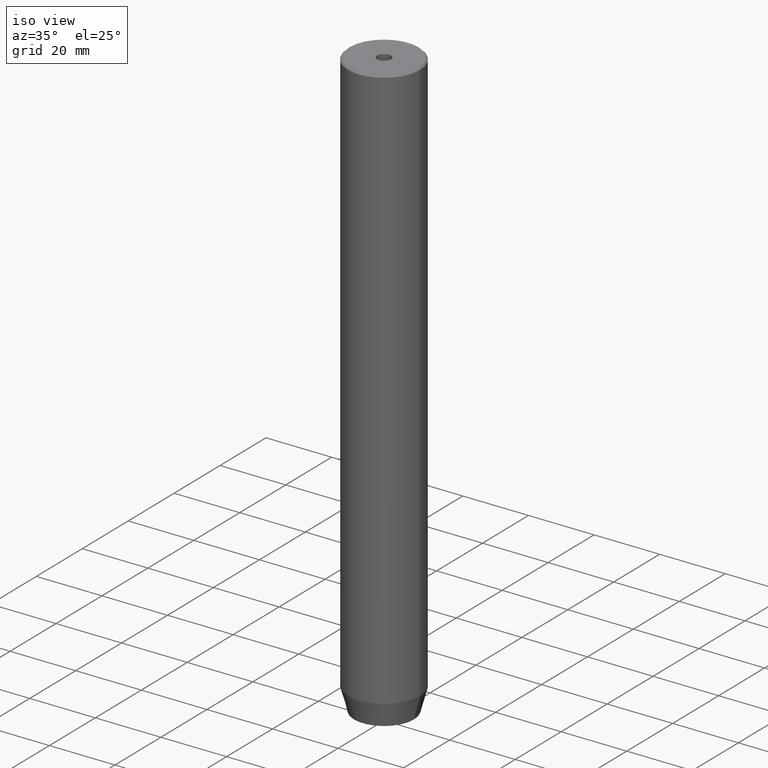
[diagram: clean part render]
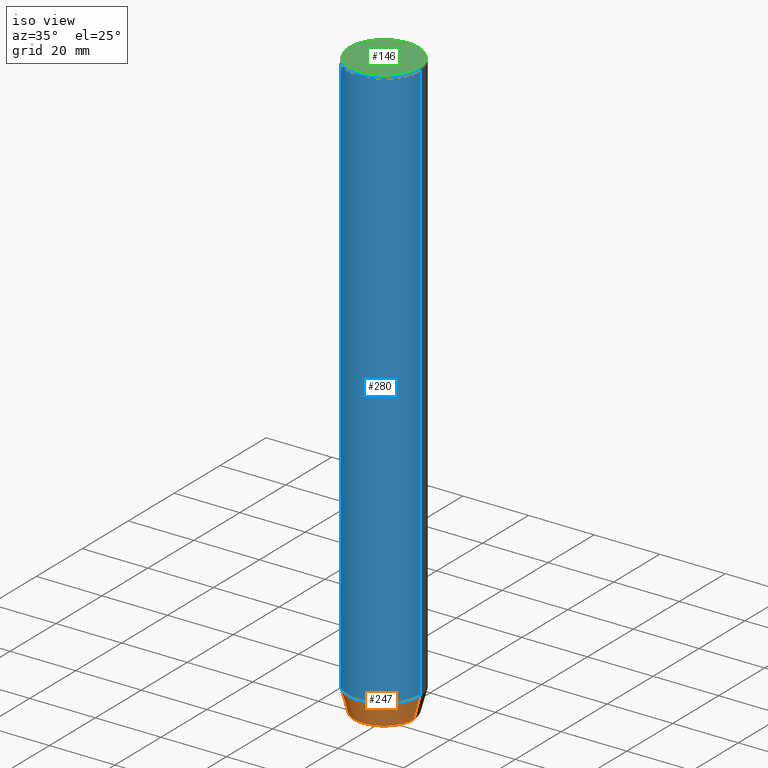
[diagram: same view with three faces highlighted in distinct colors, each labeled with its STEP entity id]
A machine part, iso view with three faces highlighted in distinct colors.
Their STEP definitions:

[orange] entity #247 — the highlighted conical surface has half-angle 15 deg.
#8 = EDGE_CURVE ( 'NONE', #311, #283, #334, .T. ) ;
#15 = EDGE_CURVE ( 'NONE', #337, #311, #440, .T. ) ;
#34 = ORIENTED_EDGE ( 'NONE', *, *, #416, .T. ) ;
#57 = AXIS2_PLACEMENT_3D ( 'NONE', #515, #100, #565 ) ;
#70 = CARTESIAN_POINT ( 'NONE',  ( -9.124355652982133691, 1.232261386766375507E-15, -180.0000000000000000 ) ) ;
#78 = DIRECTION ( 'NONE',  ( 1.000000000000000000, 0.000000000000000000, 0.000000000000000000 ) ) ;
#83 = VECTOR ( 'NONE', #348, 1000.000000000000000 ) ;
#91 = CARTESIAN_POINT ( 'NONE',  ( 9.124355652982133691, 0.000000000000000000, -180.0000000000000000 ) ) ;
#100 = DIRECTION ( 'NONE',  ( -0.000000000000000000, -0.000000000000000000, 1.000000000000000000 ) ) ;
#120 = CARTESIAN_POINT ( 'NONE',  ( -11.00000000000000000, 1.347111479062088405E-15, -173.0000000000000000 ) ) ;
#160 = DIRECTION ( 'NONE',  ( 1.000000000000000000, 0.000000000000000000, 0.000000000000000000 ) ) ;
#162 = AXIS2_PLACEMENT_3D ( 'NONE', #561, #249, #160 ) ;
#174 = CONICAL_SURFACE ( 'NONE', #57, 11.00000000000000000, 0.2617993877991500740 ) ;
#178 = ORIENTED_EDGE ( 'NONE', *, *, #8, .F. ) ;
#179 = CARTESIAN_POINT ( 'NONE',  ( 0.000000000000000000, 0.000000000000000000, -173.0000000000000000 ) ) ;
#201 = ORIENTED_EDGE ( 'NONE', *, *, #15, .F. ) ;
#206 = EDGE_LOOP ( 'NONE', ( #201, #220, #34, #178 ) ) ;
#220 = ORIENTED_EDGE ( 'NONE', *, *, #320, .T. ) ;
#222 = LINE ( 'NONE', #354, #435 ) ;
#240 = AXIS2_PLACEMENT_3D ( 'NONE', #179, #487, #78 ) ;
#247 = ADVANCED_FACE ( 'NONE', ( #478 ), #174, .T. ) ;
#249 = DIRECTION ( 'NONE',  ( -0.000000000000000000, -0.000000000000000000, 1.000000000000000000 ) ) ;
#258 = DIRECTION ( 'NONE',  ( 0.2588190451025213501, 0.000000000000000000, 0.9659258262890680902 ) ) ;
#283 = VERTEX_POINT ( 'NONE', #331 ) ;
#311 = VERTEX_POINT ( 'NONE', #562 ) ;
#320 = EDGE_CURVE ( 'NONE', #337, #575, #467, .T. ) ;
#331 = CARTESIAN_POINT ( 'NONE',  ( 11.00000000000000000, 0.000000000000000000, -173.0000000000000000 ) ) ;
#334 = CIRCLE ( 'NONE', #240, 11.00000000000000000 ) ;
#337 = VERTEX_POINT ( 'NONE', #70 ) ;
#348 = DIRECTION ( 'NONE',  ( -0.2588190451025213501, 3.169619151431772337E-17, 0.9659258262890680902 ) ) ;
#354 = CARTESIAN_POINT ( 'NONE',  ( 11.00000000000000000, 0.000000000000000000, -173.0000000000000000 ) ) ;
#416 = EDGE_CURVE ( 'NONE', #575, #283, #222, .T. ) ;
#435 = VECTOR ( 'NONE', #258, 1000.000000000000000 ) ;
#440 = LINE ( 'NONE', #120, #83 ) ;
#467 = CIRCLE ( 'NONE', #162, 9.124355652982133691 ) ;
#478 = FACE_OUTER_BOUND ( 'NONE', #206, .T. ) ;
#487 = DIRECTION ( 'NONE',  ( -0.000000000000000000, -0.000000000000000000, 1.000000000000000000 ) ) ;
#515 = CARTESIAN_POINT ( 'NONE',  ( 0.000000000000000000, 0.000000000000000000, -173.0000000000000000 ) ) ;
#561 = CARTESIAN_POINT ( 'NONE',  ( 0.000000000000000000, 0.000000000000000000, -180.0000000000000000 ) ) ;
#562 = CARTESIAN_POINT ( 'NONE',  ( -11.00000000000000000, 1.347111479062088405E-15, -173.0000000000000000 ) ) ;
#565 = DIRECTION ( 'NONE',  ( 1.000000000000000000, 0.000000000000000000, 0.000000000000000000 ) ) ;
#575 = VERTEX_POINT ( 'NONE', #91 ) ;

[blue] entity #280 — the highlighted cylindrical surface (partial cylindrical patch) has radius 11 mm, axis along (-0, -0, 1).
#5 = VECTOR ( 'NONE', #119, 1000.000000000000000 ) ;
#8 = EDGE_CURVE ( 'NONE', #311, #283, #334, .T. ) ;
#25 = FACE_OUTER_BOUND ( 'NONE', #542, .T. ) ;
#30 = ORIENTED_EDGE ( 'NONE', *, *, #495, .F. ) ;
#31 = CARTESIAN_POINT ( 'NONE',  ( -11.00000000000000000, 1.347111479062088405E-15, -0.5000000000000004441 ) ) ;
#71 = ORIENTED_EDGE ( 'NONE', *, *, #262, .T. ) ;
#78 = DIRECTION ( 'NONE',  ( 1.000000000000000000, 0.000000000000000000, 0.000000000000000000 ) ) ;
#103 = CARTESIAN_POINT ( 'NONE',  ( 0.000000000000000000, 0.000000000000000000, 0.000000000000000000 ) ) ;
#106 = DIRECTION ( 'NONE',  ( -0.000000000000000000, -0.000000000000000000, 1.000000000000000000 ) ) ;
#119 = DIRECTION ( 'NONE',  ( -0.000000000000000000, -0.000000000000000000, 1.000000000000000000 ) ) ;
#126 = DIRECTION ( 'NONE',  ( -0.000000000000000000, -0.000000000000000000, 1.000000000000000000 ) ) ;
#163 = AXIS2_PLACEMENT_3D ( 'NONE', #103, #106, #202 ) ;
#179 = CARTESIAN_POINT ( 'NONE',  ( 0.000000000000000000, 0.000000000000000000, -173.0000000000000000 ) ) ;
#192 = CYLINDRICAL_SURFACE ( 'NONE', #163, 11.00000000000000000 ) ;
#202 = DIRECTION ( 'NONE',  ( 1.000000000000000000, 0.000000000000000000, 0.000000000000000000 ) ) ;
#211 = CARTESIAN_POINT ( 'NONE',  ( 11.00000000000000000, 0.000000000000000000, 0.000000000000000000 ) ) ;
#240 = AXIS2_PLACEMENT_3D ( 'NONE', #179, #487, #78 ) ;
#256 = VERTEX_POINT ( 'NONE', #379 ) ;
#262 = EDGE_CURVE ( 'NONE', #256, #472, #325, .T. ) ;
#280 = ADVANCED_FACE ( 'NONE', ( #25 ), #192, .T. ) ;
#283 = VERTEX_POINT ( 'NONE', #331 ) ;
#311 = VERTEX_POINT ( 'NONE', #562 ) ;
#317 = VECTOR ( 'NONE', #126, 1000.000000000000000 ) ;
#325 = CIRCLE ( 'NONE', #517, 11.00000000000000000 ) ;
#331 = CARTESIAN_POINT ( 'NONE',  ( 11.00000000000000000, 0.000000000000000000, -173.0000000000000000 ) ) ;
#334 = CIRCLE ( 'NONE', #240, 11.00000000000000000 ) ;
#344 = ORIENTED_EDGE ( 'NONE', *, *, #8, .T. ) ;
#345 = CARTESIAN_POINT ( 'NONE',  ( -11.00000000000000000, 1.347111479062088405E-15, 0.000000000000000000 ) ) ;
#374 = CARTESIAN_POINT ( 'NONE',  ( 0.000000000000000000, 0.000000000000000000, -0.5000000000000004441 ) ) ;
#379 = CARTESIAN_POINT ( 'NONE',  ( 11.00000000000000000, 0.000000000000000000, -0.5000000000000004441 ) ) ;
#433 = ORIENTED_EDGE ( 'NONE', *, *, #560, .T. ) ;
#472 = VERTEX_POINT ( 'NONE', #31 ) ;
#473 = LINE ( 'NONE', #211, #5 ) ;
#486 = LINE ( 'NONE', #345, #317 ) ;
#487 = DIRECTION ( 'NONE',  ( -0.000000000000000000, -0.000000000000000000, 1.000000000000000000 ) ) ;
#495 = EDGE_CURVE ( 'NONE', #311, #472, #486, .T. ) ;
#517 = AXIS2_PLACEMENT_3D ( 'NONE', #374, #529, #522 ) ;
#522 = DIRECTION ( 'NONE',  ( 1.000000000000000000, 0.000000000000000000, 0.000000000000000000 ) ) ;
#529 = DIRECTION ( 'NONE',  ( 0.000000000000000000, 0.000000000000000000, -1.000000000000000000 ) ) ;
#542 = EDGE_LOOP ( 'NONE', ( #30, #344, #433, #71 ) ) ;
#560 = EDGE_CURVE ( 'NONE', #283, #256, #473, .T. ) ;
#562 = CARTESIAN_POINT ( 'NONE',  ( -11.00000000000000000, 1.347111479062088405E-15, -173.0000000000000000 ) ) ;

[green] entity #146 — the highlighted planar face has unit normal (0, -0, 1).
#23 = CIRCLE ( 'NONE', #578, 2.099999999999998757 ) ;
#27 = EDGE_CURVE ( 'NONE', #387, #176, #23, .T. ) ;
#41 = EDGE_CURVE ( 'NONE', #563, #153, #128, .T. ) ;
#43 = DIRECTION ( 'NONE',  ( 1.000000000000000000, 0.000000000000000000, 0.000000000000000000 ) ) ;
#63 = ORIENTED_EDGE ( 'NONE', *, *, #583, .F. ) ;
#79 = CARTESIAN_POINT ( 'NONE',  ( 10.50000000000000888, 1.316495309083405209E-15, 0.000000000000000000 ) ) ;
#80 = CARTESIAN_POINT ( 'NONE',  ( 0.000000000000000000, 0.000000000000000000, 0.000000000000000000 ) ) ;
#98 = CARTESIAN_POINT ( 'NONE',  ( 2.099999999999998757, 0.000000000000000000, -1.990051048614449116E-16 ) ) ;
#101 = AXIS2_PLACEMENT_3D ( 'NONE', #454, #233, #462 ) ;
#116 = ORIENTED_EDGE ( 'NONE', *, *, #27, .F. ) ;
#121 = CARTESIAN_POINT ( 'NONE',  ( 0.000000000000000000, 0.000000000000000000, 0.000000000000000000 ) ) ;
#128 = CIRCLE ( 'NONE', #466, 10.50000000000000888 ) ;
#130 = CARTESIAN_POINT ( 'NONE',  ( 0.000000000000000000, 0.000000000000000000, -1.990051048614449116E-16 ) ) ;
#146 = ADVANCED_FACE ( 'NONE', ( #410, #271 ), #186, .T. ) ;
#147 = CARTESIAN_POINT ( 'NONE',  ( -2.099999999999998757, 2.571758278209440478E-16, -1.990051048614449116E-16 ) ) ;
#153 = VERTEX_POINT ( 'NONE', #512 ) ;
#171 = DIRECTION ( 'NONE',  ( 1.000000000000000000, 0.000000000000000000, 0.000000000000000000 ) ) ;
#176 = VERTEX_POINT ( 'NONE', #147 ) ;
#186 = PLANE ( 'NONE',  #101 ) ;
#203 = ORIENTED_EDGE ( 'NONE', *, *, #516, .T. ) ;
#209 = EDGE_LOOP ( 'NONE', ( #203, #531 ) ) ;
#213 = CARTESIAN_POINT ( 'NONE',  ( 0.000000000000000000, 0.000000000000000000, -1.990051048614449116E-16 ) ) ;
#215 = CIRCLE ( 'NONE', #264, 10.50000000000000888 ) ;
#217 = DIRECTION ( 'NONE',  ( 1.000000000000000000, 0.000000000000000000, 0.000000000000000000 ) ) ;
#233 = DIRECTION ( 'NONE',  ( 0.000000000000000000, -0.000000000000000000, 1.000000000000000000 ) ) ;
#264 = AXIS2_PLACEMENT_3D ( 'NONE', #121, #304, #448 ) ;
#271 = FACE_OUTER_BOUND ( 'NONE', #209, .T. ) ;
#304 = DIRECTION ( 'NONE',  ( -0.000000000000000000, -0.000000000000000000, 1.000000000000000000 ) ) ;
#318 = AXIS2_PLACEMENT_3D ( 'NONE', #130, #497, #43 ) ;
#387 = VERTEX_POINT ( 'NONE', #98 ) ;
#389 = DIRECTION ( 'NONE',  ( -0.000000000000000000, -0.000000000000000000, 1.000000000000000000 ) ) ;
#391 = DIRECTION ( 'NONE',  ( -0.000000000000000000, -0.000000000000000000, 1.000000000000000000 ) ) ;
#410 = FACE_BOUND ( 'NONE', #584, .T. ) ;
#448 = DIRECTION ( 'NONE',  ( 1.000000000000000000, 0.000000000000000000, 0.000000000000000000 ) ) ;
#454 = CARTESIAN_POINT ( 'NONE',  ( 0.000000000000000000, 0.000000000000000000, 0.000000000000000000 ) ) ;
#462 = DIRECTION ( 'NONE',  ( 1.000000000000000000, 0.000000000000000000, 0.000000000000000000 ) ) ;
#466 = AXIS2_PLACEMENT_3D ( 'NONE', #80, #391, #217 ) ;
#497 = DIRECTION ( 'NONE',  ( -0.000000000000000000, -0.000000000000000000, 1.000000000000000000 ) ) ;
#512 = CARTESIAN_POINT ( 'NONE',  ( -10.50000000000000888, 0.000000000000000000, 0.000000000000000000 ) ) ;
#516 = EDGE_CURVE ( 'NONE', #153, #563, #215, .T. ) ;
#527 = CIRCLE ( 'NONE', #318, 2.099999999999998757 ) ;
#531 = ORIENTED_EDGE ( 'NONE', *, *, #41, .T. ) ;
#563 = VERTEX_POINT ( 'NONE', #79 ) ;
#578 = AXIS2_PLACEMENT_3D ( 'NONE', #213, #389, #171 ) ;
#583 = EDGE_CURVE ( 'NONE', #176, #387, #527, .T. ) ;
#584 = EDGE_LOOP ( 'NONE', ( #116, #63 ) ) ;